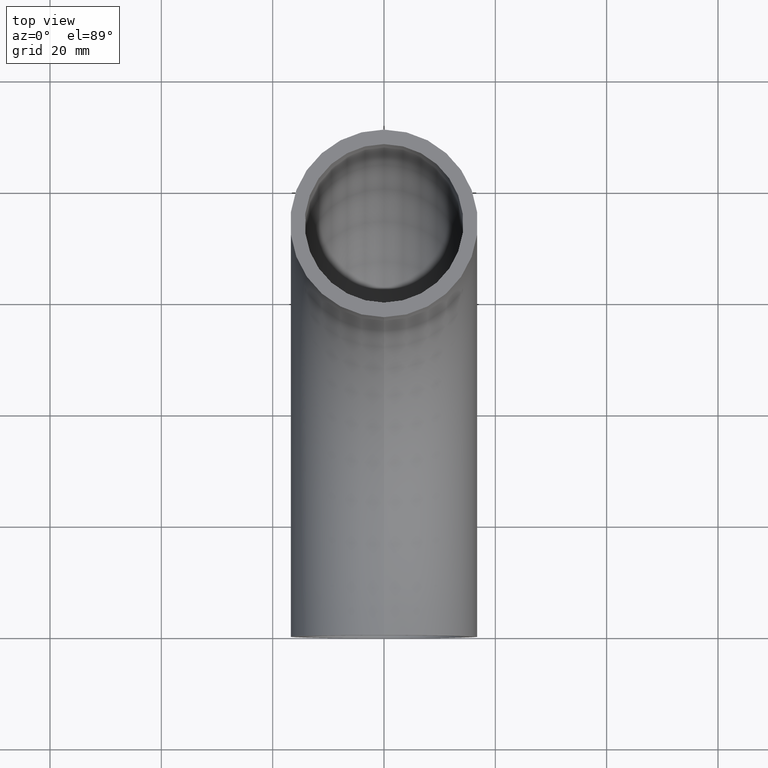
[diagram: clean part render]
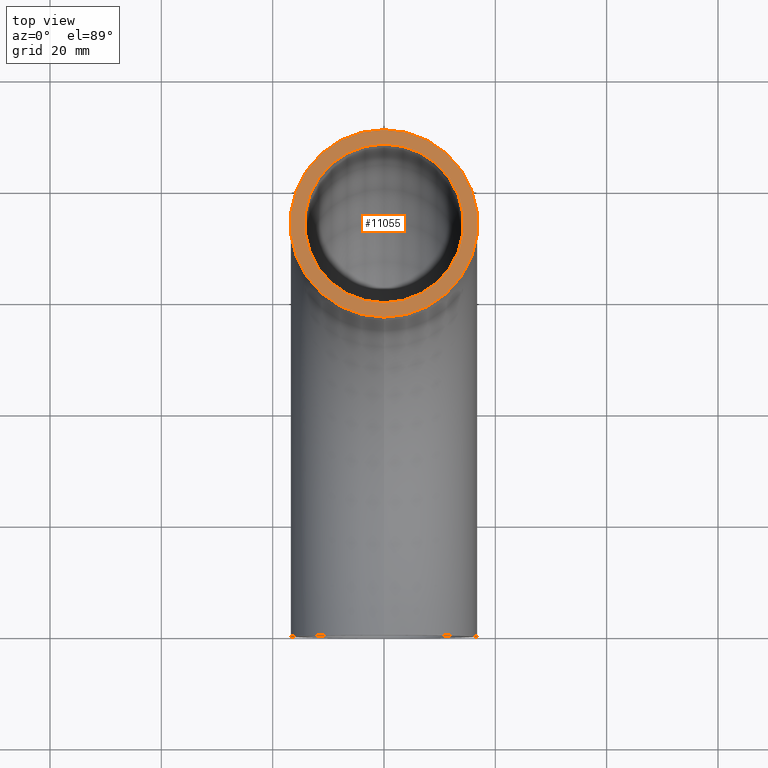
[diagram: same view with one face highlighted and labeled with its STEP entity id]
A machine part, top view. The second image highlights one B-rep face of the part: STEP entity #11055.
In plain terms, the highlighted planar face has unit normal (0, 0, 1).
Its self-contained STEP definition (entity closure, byte-faithful):
#151 = DIRECTION ( 'NONE',  ( 0.000000000000000000, 6.123233995736766036E-17, 1.000000000000000000 ) ) ;
#442 = CARTESIAN_POINT ( 'NONE',  ( 0.000000000000000000, 73.00000000000000000, -4.469960816887838430E-15 ) ) ;
#563 = VERTEX_POINT ( 'NONE', #5980 ) ;
#1063 = DIRECTION ( 'NONE',  ( 0.000000000000000000, -1.000000000000000000, 6.123233995736763571E-17 ) ) ;
#1460 = EDGE_LOOP ( 'NONE', ( #5533 ) ) ;
#2466 = CARTESIAN_POINT ( 'NONE',  ( 0.000000000000000000, 73.00000000000000000, -4.469960816887838430E-15 ) ) ;
#3198 = AXIS2_PLACEMENT_3D ( 'NONE', #2466, #151, #1063 ) ;
#3366 = FACE_BOUND ( 'NONE', #7719, .T. ) ;
#4254 = EDGE_CURVE ( 'NONE', #5979, #5979, #6465, .T. ) ;
#5028 = AXIS2_PLACEMENT_3D ( 'NONE', #10916, #8367, #9099 ) ;
#5126 = EDGE_CURVE ( 'NONE', #563, #563, #7480, .T. ) ;
#5467 = ORIENTED_EDGE ( 'NONE', *, *, #4254, .F. ) ;
#5533 = ORIENTED_EDGE ( 'NONE', *, *, #5126, .T. ) ;
#5979 = VERTEX_POINT ( 'NONE', #10318 ) ;
#5980 = CARTESIAN_POINT ( 'NONE',  ( 0.000000000000000000, 56.14999999999999147, -3.438195888606193308E-15 ) ) ;
#6465 = CIRCLE ( 'NONE', #3198, 14.24999999999999822 ) ;
#6487 = DIRECTION ( 'NONE',  ( 0.000000000000000000, 6.123233995736766036E-17, 1.000000000000000000 ) ) ;
#7442 = DIRECTION ( 'NONE',  ( 0.000000000000000000, -1.000000000000000000, 6.123233995736764803E-17 ) ) ;
#7480 = CIRCLE ( 'NONE', #7609, 16.85000000000000497 ) ;
#7609 = AXIS2_PLACEMENT_3D ( 'NONE', #442, #6487, #7442 ) ;
#7719 = EDGE_LOOP ( 'NONE', ( #5467 ) ) ;
#8246 = PLANE ( 'NONE',  #5028 ) ;
#8367 = DIRECTION ( 'NONE',  ( 0.000000000000000000, 6.123233995736766036E-17, 1.000000000000000000 ) ) ;
#9099 = DIRECTION ( 'NONE',  ( 0.000000000000000000, -1.000000000000000000, 6.123233995736766036E-17 ) ) ;
#10318 = CARTESIAN_POINT ( 'NONE',  ( 0.000000000000000000, 58.75000000000000000, -3.597399972495349710E-15 ) ) ;
#10481 = FACE_OUTER_BOUND ( 'NONE', #1460, .T. ) ;
#10916 = CARTESIAN_POINT ( 'NONE',  ( 0.000000000000000000, 73.00000000000000000, -4.469960816887838430E-15 ) ) ;
#11055 = ADVANCED_FACE ( 'NONE', ( #3366, #10481 ), #8246, .T. ) ;